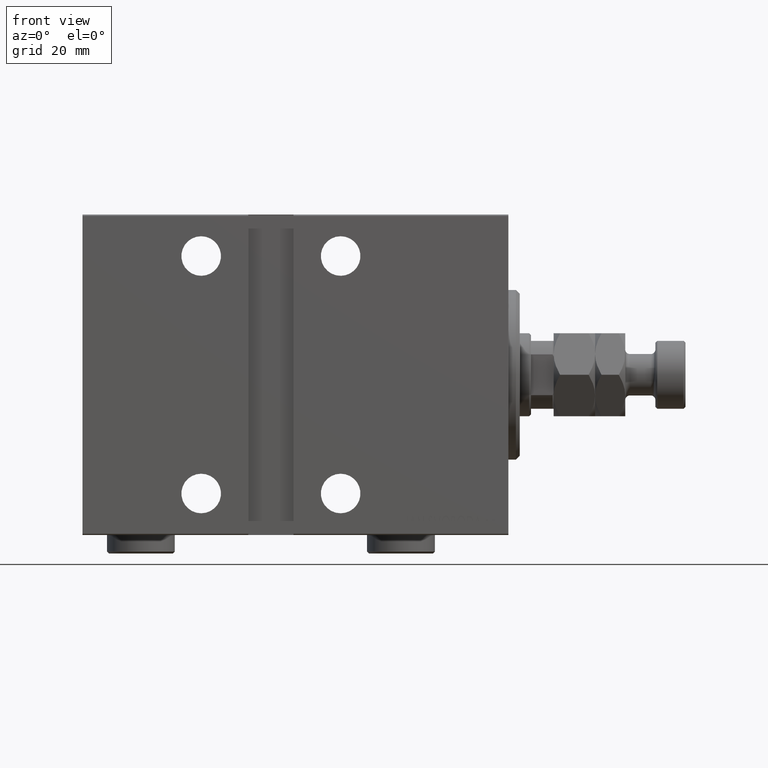
[diagram: clean part render]
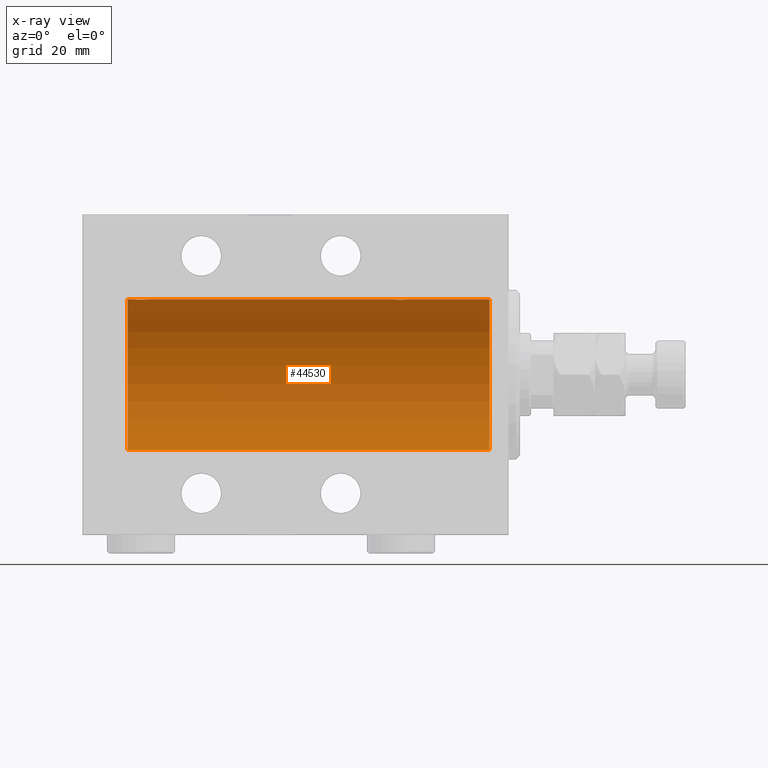
[diagram: x-ray — body ghosted, one internal face saturated and labeled with its STEP entity id]
A machine part, front view, then the same camera in x-ray: the body is ghosted and one INTERNAL B-rep face — a face not visible from any outside direction — is saturated and labeled: STEP entity #44530.
In plain terms, the highlighted cylindrical surface (partial cylindrical patch) has radius 20 mm, axis along (1, 0, -0).
Its self-contained STEP definition (entity closure, byte-faithful):
#52 = CARTESIAN_POINT ( 'NONE',  ( 96.85369326075360163, -1.897222639860602023, 19.90987429971496425 ) ) ;
#269 = CARTESIAN_POINT ( 'NONE',  ( 99.50000000000000000, 1.179655747245154047E-15, 20.00000000000000000 ) ) ;
#300 = EDGE_CURVE ( 'NONE', #4445, #10724, #14532, .T. ) ;
#423 = CARTESIAN_POINT ( 'NONE',  ( 101.0000000000000000, 2.449293598294706513E-15, -20.00000000000000000 ) ) ;
#510 = CARTESIAN_POINT ( 'NONE',  ( 98.14348528733043509, -1.898187925611337867, 19.90978194174746818 ) ) ;
#1231 = CARTESIAN_POINT ( 'NONE',  ( 101.0000000000000000, 0.000000000000000000, 0.000000000000000000 ) ) ;
#1548 = EDGE_CURVE ( 'NONE', #2391, #32894, #17881, .T. ) ;
#1934 = ORIENTED_EDGE ( 'NONE', *, *, #1548, .T. ) ;
#2110 = EDGE_LOOP ( 'NONE', ( #14931, #32123, #21680, #24906, #31676, #3460, #1934, #30920 ) ) ;
#2391 = VERTEX_POINT ( 'NONE', #21207 ) ;
#2551 = CARTESIAN_POINT ( 'NONE',  ( 5.000000000000004441, 2.449293598294706513E-15, -20.00000000000000000 ) ) ;
#3009 = DIRECTION ( 'NONE',  ( -1.000000000000000000, -0.000000000000000000, -0.000000000000000000 ) ) ;
#3460 = ORIENTED_EDGE ( 'NONE', *, *, #19534, .F. ) ;
#3546 = CARTESIAN_POINT ( 'NONE',  ( 96.17693331080535302, -1.505486175075775757, 19.94347168299867690 ) ) ;
#3582 = DIRECTION ( 'NONE',  ( -1.000000000000000000, 0.000000000000000000, 0.000000000000000000 ) ) ;
#3654 = CARTESIAN_POINT ( 'NONE',  ( 30.50000000000000000, -3.987914257189907626E-15, 20.00000000000000000 ) ) ;
#4357 = CARTESIAN_POINT ( 'NONE',  ( 29.14348528733042087, -1.898187925611344085, 19.90978194174746818 ) ) ;
#4445 = VERTEX_POINT ( 'NONE', #26536 ) ;
#4724 = DIRECTION ( 'NONE',  ( -1.000000000000000000, -0.000000000000000000, -0.000000000000000000 ) ) ;
#4875 = DIRECTION ( 'NONE',  ( 0.000000000000000000, 0.000000000000000000, 1.000000000000000000 ) ) ;
#5113 = CARTESIAN_POINT ( 'NONE',  ( 5.000000000000004441, 0.000000000000000000, 0.000000000000000000 ) ) ;
#7033 = CARTESIAN_POINT ( 'NONE',  ( 95.50000000000000000, -1.553188236289650144E-23, 20.00000000000000000 ) ) ;
#7143 = CARTESIAN_POINT ( 'NONE',  ( 29.50067219139244301, -1.736582545981380177, 19.92459705242981371 ) ) ;
#7219 = CARTESIAN_POINT ( 'NONE',  ( 5.000000000000004441, 0.000000000000000000, 20.00000000000000000 ) ) ;
#7271 = CARTESIAN_POINT ( 'NONE',  ( 96.61170562792906935, -1.796691196322324435, 19.91919800395357143 ) ) ;
#7653 = CARTESIAN_POINT ( 'NONE',  ( 101.0000000000000000, 2.449293598294706513E-15, -20.00000000000000000 ) ) ;
#7724 = CARTESIAN_POINT ( 'NONE',  ( 95.75174086539982454, -1.005710574260844314, 19.97614991974274901 ) ) ;
#7839 = CARTESIAN_POINT ( 'NONE',  ( 26.90058475115969827, -1.228758402364239055, 19.96307487248084556 ) ) ;
#8093 = AXIS2_PLACEMENT_3D ( 'NONE', #17986, #3582, #32188 ) ;
#10724 = VERTEX_POINT ( 'NONE', #18407 ) ;
#10748 = CARTESIAN_POINT ( 'NONE',  ( 96.98076487864726403, -1.935816449315128640, 19.90611141657401717 ) ) ;
#10856 = CARTESIAN_POINT ( 'NONE',  ( 29.38579076670728440, -1.797933656607922481, 19.91908554465558367 ) ) ;
#10984 = CARTESIAN_POINT ( 'NONE',  ( 98.82096906847290541, -1.507328959728491791, 19.94333197382385592 ) ) ;
#11034 = CIRCLE ( 'NONE', #11788, 20.00000000000000000 ) ;
#11102 = LINE ( 'NONE', #35528, #44984 ) ;
#11211 = AXIS2_PLACEMENT_3D ( 'NONE', #1231, #4724, #18909 ) ;
#11328 = CARTESIAN_POINT ( 'NONE',  ( 29.71805419472151755, -1.591668229360200248, 19.93669678979812332 ) ) ;
#11469 = CYLINDRICAL_SURFACE ( 'NONE', #11211, 20.00000000000000000 ) ;
#11566 = CARTESIAN_POINT ( 'NONE',  ( 30.09774691554730452, -1.230936344679279815, 19.96293863536309132 ) ) ;
#11788 = AXIS2_PLACEMENT_3D ( 'NONE', #5113, #23011, #4875 ) ;
#13670 = EDGE_CURVE ( 'NONE', #29939, #35690, #11034, .T. ) ;
#14124 = CARTESIAN_POINT ( 'NONE',  ( 26.50000000000000355, -1.552596590610734385E-23, 20.00000000000000000 ) ) ;
#14339 = CARTESIAN_POINT ( 'NONE',  ( 28.23641855908585541, -1.986835489085819306, 19.90108393514801577 ) ) ;
#14532 = B_SPLINE_CURVE_WITH_KNOTS ( 'NONE', 3,
 ( #14124, #39952, #14575, #29253, #7839, #28778, #39479, #25278, #43438, #32044, #18058, #14339, #32263, #45992, #21779, #39003, #4357, #10856, #7143, #11328, #35975, #11566, #28539, #42974, #25505, #3654 ),
 .UNSPECIFIED., .F., .F.,
 ( 4, 2, 2, 2, 2, 2, 2, 2, 2, 2, 2, 2, 4 ),
 ( 0.006256819553329798916, 0.007038738568778772457, 0.007820657584227745998, 0.008211617091952227998, 0.008602576599676711733, 0.008993536107401193733, 0.009384495615125675733, 0.009775455122850159467, 0.01016641463057464147, 0.01055737413829912347, 0.01094833364602360720, 0.01173025266147257120, 0.01251217167692153520 ),
 .UNSPECIFIED. ) ;
#14575 = CARTESIAN_POINT ( 'NONE',  ( 26.55244937117492299, -0.5243189001515042857, 19.99457699142850586 ) ) ;
#14707 = CARTESIAN_POINT ( 'NONE',  ( 99.44679484191794927, -0.5270924491156663283, 19.99450181871975829 ) ) ;
#14931 = ORIENTED_EDGE ( 'NONE', *, *, #38597, .F. ) ;
#14945 = CARTESIAN_POINT ( 'NONE',  ( 99.24686976303073038, -1.008108445278683707, 19.97602680192586178 ) ) ;
#17841 = DIRECTION ( 'NONE',  ( -1.000000000000000000, -0.000000000000000000, -0.000000000000000000 ) ) ;
#17868 = LINE ( 'NONE', #423, #17938 ) ;
#17881 = B_SPLINE_CURVE_WITH_KNOTS ( 'NONE', 3,
 ( #7033, #21204, #29144, #7724, #35411, #3546, #39367, #31938, #7271, #52, #10748, #21437, #24476, #43104, #28436, #25398, #510, #24933, #39135, #35646, #10984, #17955, #14945, #14707, #18429, #269 ),
 .UNSPECIFIED., .F., .F.,
 ( 4, 2, 2, 2, 2, 2, 2, 2, 2, 2, 2, 2, 4 ),
 ( 0.006256819553329832743, 0.007038738568778782866, 0.007820657584227733855, 0.008211617091952222794, 0.008602576599676711733, 0.008993536107401202406, 0.009384495615125691345, 0.009775455122850180284, 0.01016641463057467096, 0.01055737413829916163, 0.01094833364602365057, 0.01173025266147263018, 0.01251217167692160806 ),
 .UNSPECIFIED. ) ;
#17938 = VECTOR ( 'NONE', #3009, 1000.000000000000000 ) ;
#17955 = CARTESIAN_POINT ( 'NONE',  ( 99.09774691554729031, -1.230936344679276040, 19.96293863536309487 ) ) ;
#17986 = CARTESIAN_POINT ( 'NONE',  ( 101.0000000000000000, 0.000000000000000000, 0.000000000000000000 ) ) ;
#18058 = CARTESIAN_POINT ( 'NONE',  ( 27.98076487864722495, -1.935816449315130194, 19.90611141657401006 ) ) ;
#18407 = CARTESIAN_POINT ( 'NONE',  ( 30.50000000000000000, -3.987914257189907626E-15, 20.00000000000000000 ) ) ;
#18429 = CARTESIAN_POINT ( 'NONE',  ( 99.50000000000000000, -0.2644051013330991351, 19.99999999999999645 ) ) ;
#18909 = DIRECTION ( 'NONE',  ( 0.000000000000000000, 0.000000000000000000, 1.000000000000000000 ) ) ;
#19245 = VERTEX_POINT ( 'NONE', #42300 ) ;
#19534 = EDGE_CURVE ( 'NONE', #2391, #10724, #40374, .T. ) ;
#21204 = CARTESIAN_POINT ( 'NONE',  ( 95.50000000000000000, -0.2610801504281921037, 19.99999999999999645 ) ) ;
#21207 = CARTESIAN_POINT ( 'NONE',  ( 95.50000000000000000, -1.553188236289650144E-23, 20.00000000000000000 ) ) ;
#21437 = CARTESIAN_POINT ( 'NONE',  ( 97.23641855908581988, -1.986835489085817530, 19.90108393514801577 ) ) ;
#21680 = ORIENTED_EDGE ( 'NONE', *, *, #13670, .T. ) ;
#21718 = EDGE_CURVE ( 'NONE', #4445, #35690, #11102, .T. ) ;
#21779 = CARTESIAN_POINT ( 'NONE',  ( 28.76077256031567586, -1.987205673487814295, 19.90104673894210663 ) ) ;
#23011 = DIRECTION ( 'NONE',  ( -1.000000000000000000, 0.000000000000000000, 0.000000000000000000 ) ) ;
#23931 = EDGE_CURVE ( 'NONE', #19245, #32894, #36246, .T. ) ;
#24476 = CARTESIAN_POINT ( 'NONE',  ( 97.36634803857550935, -1.999898234284064769, 19.89975896996865146 ) ) ;
#24906 = ORIENTED_EDGE ( 'NONE', *, *, #21718, .F. ) ;
#24933 = CARTESIAN_POINT ( 'NONE',  ( 98.38579076670730217, -1.797933656607914710, 19.91908554465557657 ) ) ;
#25278 = CARTESIAN_POINT ( 'NONE',  ( 27.49693443660397918, -1.735203193119899678, 19.92471783160911158 ) ) ;
#25398 = CARTESIAN_POINT ( 'NONE',  ( 98.01648532918906653, -1.936551476643006531, 19.90603968831098314 ) ) ;
#25505 = CARTESIAN_POINT ( 'NONE',  ( 30.49999999999999289, -0.2644051013330973032, 20.00000000000000711 ) ) ;
#25774 = DIRECTION ( 'NONE',  ( -1.000000000000000000, -0.000000000000000000, -0.000000000000000000 ) ) ;
#26536 = CARTESIAN_POINT ( 'NONE',  ( 26.50000000000000355, -1.552596590610734385E-23, 20.00000000000000000 ) ) ;
#27402 = VERTEX_POINT ( 'NONE', #7653 ) ;
#28144 = CIRCLE ( 'NONE', #8093, 20.00000000000000000 ) ;
#28436 = CARTESIAN_POINT ( 'NONE',  ( 97.76077256031564389, -1.987205673487811630, 19.90104673894210663 ) ) ;
#28539 = CARTESIAN_POINT ( 'NONE',  ( 30.24686976303073038, -1.008108445278690812, 19.97602680192586888 ) ) ;
#28778 = CARTESIAN_POINT ( 'NONE',  ( 27.17693331080529262, -1.505486175075776423, 19.94347168299867690 ) ) ;
#29144 = CARTESIAN_POINT ( 'NONE',  ( 95.55244937117491588, -0.5243189001515063952, 19.99457699142850231 ) ) ;
#29253 = CARTESIAN_POINT ( 'NONE',  ( 26.75174086539981033, -1.005710574260843870, 19.97614991974274190 ) ) ;
#29630 = FACE_OUTER_BOUND ( 'NONE', #2110, .T. ) ;
#29688 = DIRECTION ( 'NONE',  ( -1.000000000000000000, -0.000000000000000000, -0.000000000000000000 ) ) ;
#29874 = CARTESIAN_POINT ( 'NONE',  ( 99.50000000000000000, 1.179655747245154047E-15, 20.00000000000000000 ) ) ;
#29915 = CARTESIAN_POINT ( 'NONE',  ( 101.0000000000000000, 0.000000000000000000, 20.00000000000000000 ) ) ;
#29939 = VERTEX_POINT ( 'NONE', #2551 ) ;
#30920 = ORIENTED_EDGE ( 'NONE', *, *, #23931, .F. ) ;
#31676 = ORIENTED_EDGE ( 'NONE', *, *, #300, .T. ) ;
#31938 = CARTESIAN_POINT ( 'NONE',  ( 96.49693443660399339, -1.735203193119895237, 19.92471783160911514 ) ) ;
#32044 = CARTESIAN_POINT ( 'NONE',  ( 27.85369326075355545, -1.897222639860601134, 19.90987429971495715 ) ) ;
#32123 = ORIENTED_EDGE ( 'NONE', *, *, #45015, .T. ) ;
#32188 = DIRECTION ( 'NONE',  ( 0.000000000000000000, 0.000000000000000000, 1.000000000000000000 ) ) ;
#32263 = CARTESIAN_POINT ( 'NONE',  ( 28.36634803857552001, -1.999898234284068987, 19.89975896996866211 ) ) ;
#32305 = VECTOR ( 'NONE', #25774, 1000.000000000000000 ) ;
#32894 = VERTEX_POINT ( 'NONE', #29874 ) ;
#35411 = CARTESIAN_POINT ( 'NONE',  ( 95.90058475115969827, -1.228758402364237723, 19.96307487248084200 ) ) ;
#35528 = CARTESIAN_POINT ( 'NONE',  ( 101.0000000000000000, 0.000000000000000000, 20.00000000000000000 ) ) ;
#35646 = CARTESIAN_POINT ( 'NONE',  ( 98.71805419472150334, -1.591668229360194697, 19.93669678979811977 ) ) ;
#35690 = VERTEX_POINT ( 'NONE', #7219 ) ;
#35975 = CARTESIAN_POINT ( 'NONE',  ( 29.82096906847289830, -1.507328959728495565, 19.94333197382385592 ) ) ;
#36246 = LINE ( 'NONE', #40428, #32305 ) ;
#38597 = EDGE_CURVE ( 'NONE', #27402, #19245, #28144, .T. ) ;
#39003 = CARTESIAN_POINT ( 'NONE',  ( 29.01648532918904877, -1.936551476643011194, 19.90603968831098669 ) ) ;
#39135 = CARTESIAN_POINT ( 'NONE',  ( 98.50067219139245367, -1.736582545981374182, 19.92459705242981016 ) ) ;
#39367 = CARTESIAN_POINT ( 'NONE',  ( 96.27971054205538337, -1.589957321664209333, 19.93683391378736403 ) ) ;
#39479 = CARTESIAN_POINT ( 'NONE',  ( 27.27971054205535140, -1.589957321664213108, 19.93683391378736047 ) ) ;
#39952 = CARTESIAN_POINT ( 'NONE',  ( 26.50000000000000711, -0.2610801504281932695, 20.00000000000000000 ) ) ;
#40374 = LINE ( 'NONE', #29915, #45645 ) ;
#40428 = CARTESIAN_POINT ( 'NONE',  ( 101.0000000000000000, 0.000000000000000000, 20.00000000000000000 ) ) ;
#42300 = CARTESIAN_POINT ( 'NONE',  ( 101.0000000000000000, 0.000000000000000000, 20.00000000000000000 ) ) ;
#42974 = CARTESIAN_POINT ( 'NONE',  ( 30.44679484191798480, -0.5270924491156728786, 19.99450181871975829 ) ) ;
#43104 = CARTESIAN_POINT ( 'NONE',  ( 97.63058871710832420, -2.000100592782556586, 19.89973863218035888 ) ) ;
#43438 = CARTESIAN_POINT ( 'NONE',  ( 27.61170562792909777, -1.796691196322323769, 19.91919800395357143 ) ) ;
#44530 = ADVANCED_FACE ( 'NONE', ( #29630 ), #11469, .F. ) ;
#44984 = VECTOR ( 'NONE', #17841, 1000.000000000000000 ) ;
#45015 = EDGE_CURVE ( 'NONE', #27402, #29939, #17868, .T. ) ;
#45645 = VECTOR ( 'NONE', #29688, 1000.000000000000000 ) ;
#45992 = CARTESIAN_POINT ( 'NONE',  ( 28.63058871710834552, -2.000100592782558806, 19.89973863218035888 ) ) ;